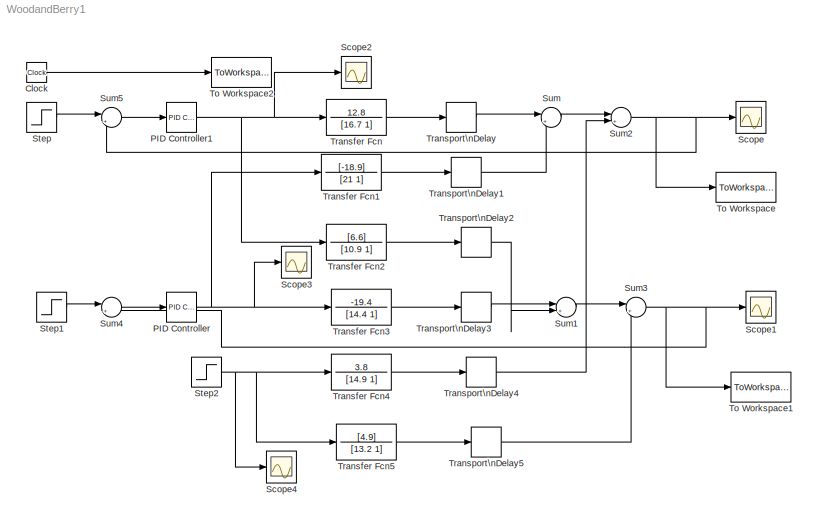
MODEL WoodandBerry1
KIND model
BLOCK [Clock] Clock
  Decimation = 10
  SID = 1
BLOCK [Reference] PID Controller  REF=simulink_need_slupdate/PID Controller
  D = 0
  FunctionWithSeparateData = off
  I = -0.075/23.6
  P = -0.075
  Ports = [1, 1]
  RTWMemSecDataConstants = Inherit from model
  RTWMemSecDataInternal = Inherit from model
  RTWMemSecDataParameters = Inherit from model
  RTWMemSecFuncExecute = Inherit from model
  RTWMemSecFuncInitTerm = Inherit from model
  SID = 2
  ShowPortLabels = FromPortIcon
  SourceBlock = simulink_need_slupdate/PID Controller
  SourceType = PID Controller
  SystemSampleTime = -1
BLOCK [Reference] PID Controller1  REF=simulink_need_slupdate/PID Controller
  D = 0
  FunctionWithSeparateData = off
  I = 0.375/8.29
  P = 0.375
  Ports = [1, 1]
  RTWMemSecDataConstants = Inherit from model
  RTWMemSecDataInternal = Inherit from model
  RTWMemSecDataParameters = Inherit from model
  RTWMemSecFuncExecute = Inherit from model
  RTWMemSecFuncInitTerm = Inherit from model
  SID = 3
  ShowPortLabels = FromPortIcon
  SourceBlock = simulink_need_slupdate/PID Controller
  SourceType = PID Controller
  SystemSampleTime = -1
BLOCK [Scope] Scope
  DataFormat = StructureWithTime
  Floating = off
  LimitDataPoints = off
  NumInputPorts = 1
  Ports = [1]
  SID = 4
  SampleTime = 0
  YMax = -0.00025
  YMin = -0.004
  ZoomMode = yonly
BLOCK [Scope] Scope1
  DataFormat = StructureWithTime
  Floating = off
  LimitDataPoints = off
  NumInputPorts = 1
  Ports = [1]
  SID = 5
  SampleTime = 0
  SaveName = ScopeData1
  SaveToWorkspace = on
  YMax = 0.99
  YMin = 0.79
BLOCK [Scope] Scope2
  DataFormat = Array
  Floating = off
  LimitDataPoints = off
  NumInputPorts = 1
  Ports = [1]
  SID = 30
  SampleTime = 0
  SaveName = Lsim
  SaveToWorkspace = on
  YMax = -0.00025
  YMin = -0.004
  ZoomMode = yonly
BLOCK [Scope] Scope3
  DataFormat = Array
  Floating = off
  LimitDataPoints = off
  NumInputPorts = 1
  Ports = [1]
  SID = 31
  SampleTime = 0
  SaveName = Vsim
  SaveToWorkspace = on
  YMax = -0.00025
  YMin = -0.004
  ZoomMode = yonly
BLOCK [Scope] Scope4
  DataFormat = Array
  Floating = off
  LimitDataPoints = off
  NumInputPorts = 1
  Ports = [1]
  SID = 32
  SampleTime = 0
  SaveName = Fsim
  SaveToWorkspace = on
  YMax = -0.00025
  YMin = -0.004
  ZoomMode = yonly
BLOCK [Step] Step
  After = 0
  SID = 6
  SampleTime = 0
  Time = 0
BLOCK [Step] Step1
  SID = 7
  SampleTime = 0
  Time = 0
BLOCK [Step] Step2
  After = 0.05
  SID = 8
  SampleTime = 0
  Time = 20
BLOCK [Sum] Sum
  IconShape = round
  InputSameDT = off
  Inputs = |++
  OutDataTypeMode = Inherit via internal rule
  OutDataTypeStr = Inherit: Inherit via internal rule
  Ports = [2, 1]
  SID = 9
  SaturateOnIntegerOverflow = off
BLOCK [Sum] Sum1
  IconShape = round
  InputSameDT = off
  Inputs = |++
  OutDataTypeMode = Inherit via internal rule
  OutDataTypeStr = Inherit: Inherit via internal rule
  Ports = [2, 1]
  SID = 10
  SaturateOnIntegerOverflow = off
BLOCK [Sum] Sum2
  IconShape = round
  InputSameDT = off
  Inputs = |++
  OutDataTypeMode = Inherit via internal rule
  OutDataTypeStr = Inherit: Inherit via internal rule
  Ports = [2, 1]
  SID = 11
  SaturateOnIntegerOverflow = off
BLOCK [Sum] Sum3
  IconShape = round
  InputSameDT = off
  Inputs = |++
  OutDataTypeMode = Inherit via internal rule
  OutDataTypeStr = Inherit: Inherit via internal rule
  Ports = [2, 1]
  SID = 12
  SaturateOnIntegerOverflow = off
BLOCK [Sum] Sum4
  IconShape = round
  InputSameDT = off
  Inputs = |+-
  OutDataTypeMode = Inherit via internal rule
  OutDataTypeStr = Inherit: Inherit via internal rule
  Ports = [2, 1]
  SID = 13
  SaturateOnIntegerOverflow = off
BLOCK [Sum] Sum5
  IconShape = round
  InputSameDT = off
  Inputs = |+-
  OutDataTypeMode = Inherit via internal rule
  OutDataTypeStr = Inherit: Inherit via internal rule
  Ports = [2, 1]
  SID = 14
  SaturateOnIntegerOverflow = off
BLOCK [ToWorkspace] To Workspace
  MaxDataPoints = inf
  Ports = [1]
  SID = 15
  SampleTime = -1
  SaveFormat = Array
  VariableName = xd
BLOCK [ToWorkspace] To Workspace1
  MaxDataPoints = inf
  Ports = [1]
  SID = 16
  SampleTime = -1
  SaveFormat = Array
  VariableName = xb
BLOCK [ToWorkspace] To Workspace2
  MaxDataPoints = inf
  Ports = [1]
  SID = 17
  SampleTime = -1
  SaveFormat = Array
  VariableName = t
BLOCK [TransferFcn] Transfer Fcn
  Denominator = [16.7 1]
  Numerator = 12.8
  SID = 18
BLOCK [TransferFcn] Transfer Fcn1
  Denominator = [21 1]
  Numerator = [-18.9]
  SID = 19
BLOCK [TransferFcn] Transfer Fcn2
  Denominator = [10.9 1]
  Numerator = [6.6]
  SID = 20
BLOCK [TransferFcn] Transfer Fcn3
  Denominator = [14.4 1]
  Numerator = -19.4
  SID = 21
BLOCK [TransferFcn] Transfer Fcn4
  Denominator = [14.9 1]
  Numerator = 3.8
  SID = 22
BLOCK [TransferFcn] Transfer Fcn5
  Denominator = [13.2 1]
  Numerator = [4.9]
  SID = 23
BLOCK [TransportDelay] Transport\nDelay
  PadeOrder = 5
  SID = 24
BLOCK [TransportDelay] Transport\nDelay1
  DelayTime = 3
  PadeOrder = 5
  SID = 25
BLOCK [TransportDelay] Transport\nDelay2
  DelayTime = 7
  PadeOrder = 5
  SID = 26
BLOCK [TransportDelay] Transport\nDelay3
  DelayTime = 3
  PadeOrder = 5
  SID = 27
BLOCK [TransportDelay] Transport\nDelay4
  DelayTime = 8
  PadeOrder = 5
  SID = 28
BLOCK [TransportDelay] Transport\nDelay5
  DelayTime = 3
  PadeOrder = 5
  SID = 29
LINE Clock:1 -> To Workspace2:1
NET PID Controller1:1 -> Scope2:1, Transfer Fcn2:1, Transfer Fcn:1
NET PID Controller:1 -> Scope3:1, Transfer Fcn1:1, Transfer Fcn3:1
LINE Step1:1 -> Sum4:1
NET Step2:1 -> Scope4:1, Transfer Fcn4:1, Transfer Fcn5:1
LINE Step:1 -> Sum5:1
LINE Sum1:1 -> Sum3:1
NET Sum2:1 -> Scope:1, Sum5:2, To Workspace:1
NET Sum3:1 -> Scope1:1, Sum4:2, To Workspace1:1
LINE Sum4:1 -> PID Controller:1
LINE Sum5:1 -> PID Controller1:1
LINE Sum:1 -> Sum2:1
LINE Transfer Fcn1:1 -> Transport\nDelay1:1
LINE Transfer Fcn2:1 -> Transport\nDelay2:1
LINE Transfer Fcn3:1 -> Transport\nDelay3:1
LINE Transfer Fcn4:1 -> Transport\nDelay4:1
LINE Transfer Fcn5:1 -> Transport\nDelay5:1
LINE Transfer Fcn:1 -> Transport\nDelay:1
LINE Transport\nDelay1:1 -> Sum:2
LINE Transport\nDelay2:1 -> Sum1:2
LINE Transport\nDelay3:1 -> Sum1:1
LINE Transport\nDelay4:1 -> Sum2:2
LINE Transport\nDelay5:1 -> Sum3:2
LINE Transport\nDelay:1 -> Sum:1
note: NET lines group one-source signal fan-out (src -> all destinations, sorted); 1:1 wires keep LINE
